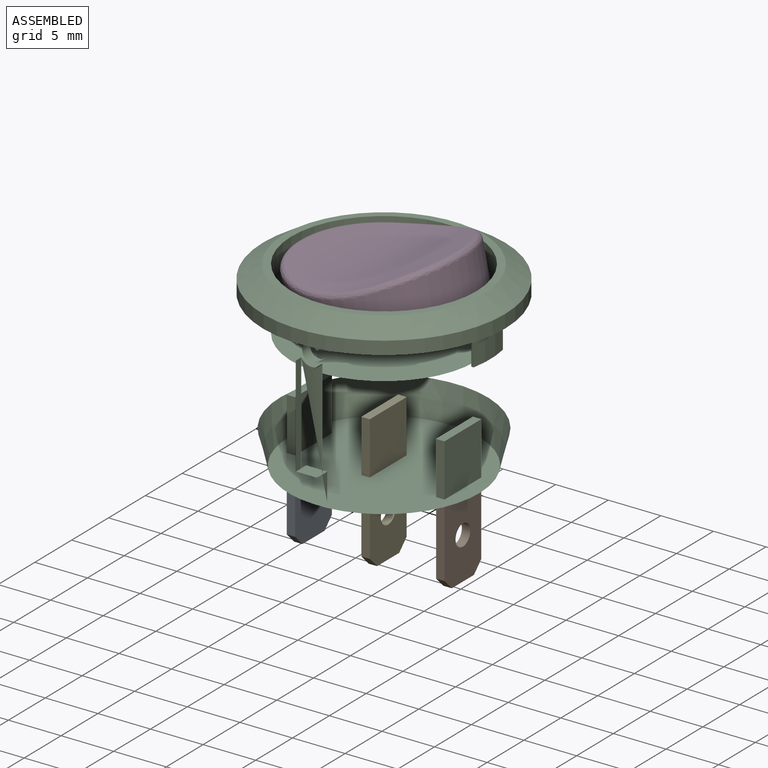
[diagram: assembled view]
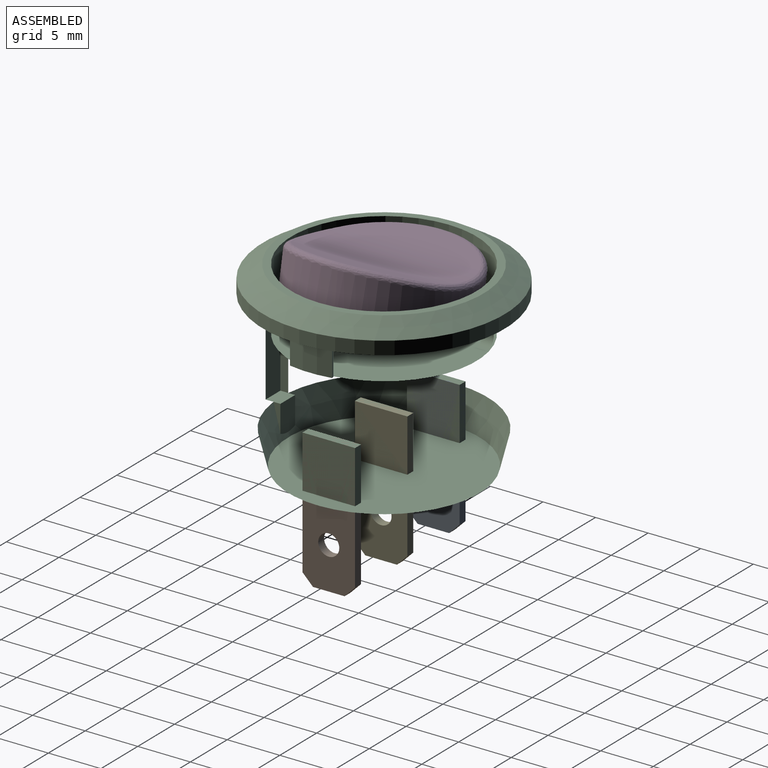
[diagram: assembled view, second angle]
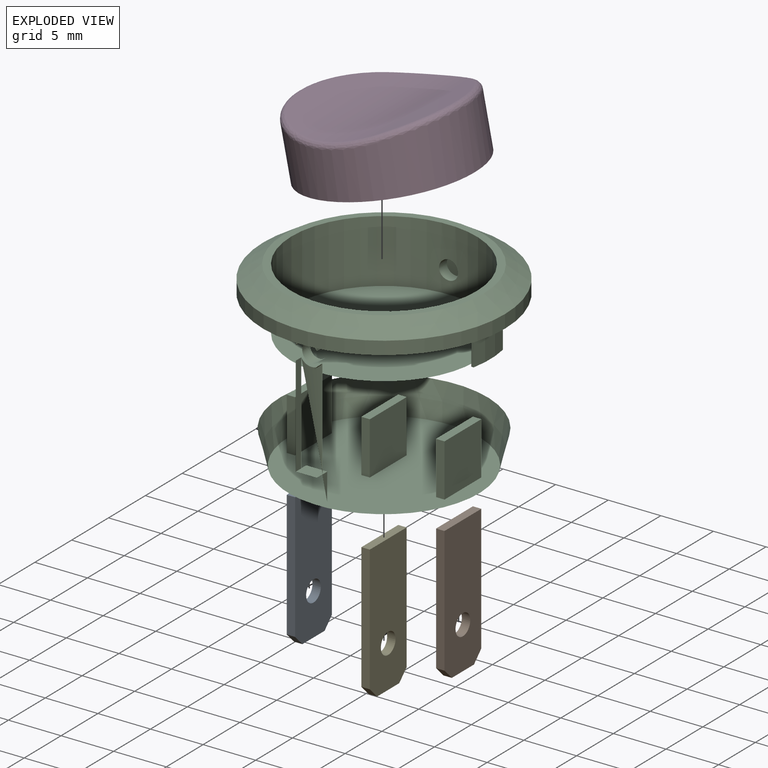
[diagram: exploded view]
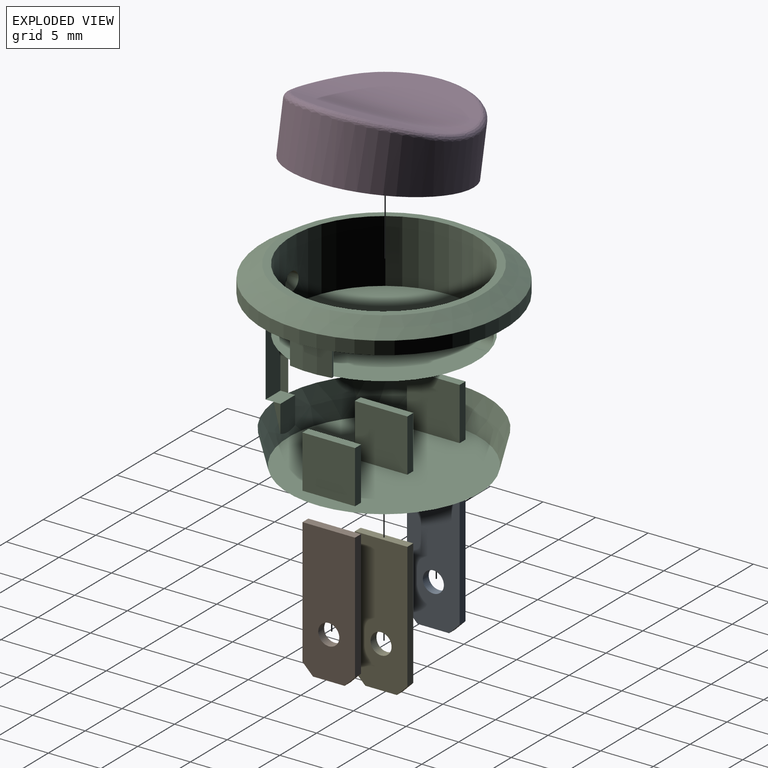
[diagram: exploded view, second angle]
ASSEMBLY  parts=5 mates=4
PART A: 9 faces, bbox 0.8x5x13 mm
  f0: plane 13x5mm, normal (-1,0,0), area 60.9mm2, adj f1,f3,f4,f5,f6,f7,f8
  f1: plane 12x0.8mm, normal (0,-1,0), area 9.6mm2, adj f0,f2,f4,f7
  f2: plane 13x5mm, normal (1,0,0), area 60.9mm2, adj f1,f3,f4,f5,f6,f7,f8
  f3: plane 12x0.8mm, normal (0,1,0), area 9.6mm2, adj f0,f2,f4,f8
  f4: plane 5x0.8mm, normal (0,0,1), area 4mm2, adj f0,f1,f2,f3
  f5: plane 3x0.8mm, normal (0,0,-1), area 2.4mm2, adj f0,f2,f7,f8
  f6: cylinder r=1mm len=2mm, axis (-1,0,0), area 5mm2, adj f0,f2
  f7: plane 1x1mm, normal (0,-0.71,-0.71), area 1.1mm2, adj f0,f1,f2,f5
  f8: plane 1x1mm, normal (0,0.71,-0.71), area 1.1mm2, adj f0,f2,f3,f5
PART B: same geometry as A
PART C: 50 faces, bbox 62.4x62.4x56.7 mm
  f0: plane 62.4x62.4mm, normal (0,0,-1), area 107.2mm2, adj f1,f3,f4,f5,f7,f8,f9,f11
  f1: plane 0.75x0.74mm, normal (1,0,0), area 0.6mm2, adj f0,f2,f3,f13
  f2: cylinder r=1.2mm len=2mm, axis (0,-1,0), area 1.7mm2, adj f1,f3,f4,f13
  f3: plane 2x0.74mm, normal (0,-1,0), area 0.7mm2, adj f0,f1,f2,f4
  f4: plane 0.75x0.74mm, normal (-1,0,0), area 0.6mm2, adj f0,f2,f3,f13
  f5: plane 3x0.25mm, normal (0.2,-0.98,0), area 0.8mm2, adj f0,f6,f7,f13
  f6: plane 4x0.45mm, normal (0,0,-1), area 1mm2, adj f5,f7,f8,f13
  f7: cylinder r=10.1mm len=4mm, axis (0,0,1), area 12.1mm2, adj f0,f5,f6,f8
  f8: plane 3x0.25mm, normal (0.2,0.98,0), area 0.8mm2, adj f0,f6,f7,f13
  f9: plane 42.4x39.65mm, normal (-0.2,0.98,0), area 0.8mm2, adj f0,f10,f11,f13
  f10: plane 4x0.45mm, normal (0,0,-1), area 1mm2, adj f9,f11,f12,f13
  f11: cylinder r=10.1mm len=4mm, axis (0,0,1), area 12.1mm2, adj f0,f9,f10,f12
  f12: plane 3x0.25mm, normal (-0.2,-0.98,0), area 0.8mm2, adj f0,f10,f11,f13
  f13: cylinder r=9.85mm len=19.7mm, axis (0,0,1), area 22.1mm2, adj f0,f1,f2,f4,f5,f6,f8,f9
  f14: cylinder r=11.5mm len=23mm, axis (0,0,-1), area 90.3mm2, adj f0,f15
  f15: cone r=9.5mm half-angle=58deg, axis (0,0,-1), area 155.6mm2, adj f14,f16
  f16: plane 19x19mm, normal (0,0,1), area 40.2mm2, adj f15,f17
  f17: cylinder r=8.8mm len=17.6mm, axis (0,0,1), area 326.6mm2, adj f16,f18,f20,f22
  f18: cylinder r=0.9mm len=1.8mm, axis (0,-1,0), area 6mm2, adj f17,f19
  f19: cylinder r=9.85mm len=1.8mm, axis (0,0,1), area 2.5mm2, adj f18
  f20: cylinder r=0.9mm len=1.8mm, axis (0,-1,0), area 6mm2, adj f17,f21
  f21: cylinder r=9.85mm len=1.8mm, axis (0,0,1), area 2.5mm2, adj f20
  f22: plane 17.6x17.6mm, normal (0,0,1), area 243.3mm2, adj f17
  f23: cylinder r=9.85mm len=19.64mm, axis (0,0,1), area 18.4mm2, adj f24,f25,f26,f27,f28
  f24: cone r=9.05mm half-angle=14deg, axis (0,0,1), area 0.1mm2, adj f23,f25,f29
  f25: cone r=9.05mm half-angle=14deg, axis (0,0,1), area 190.1mm2, adj f23,f24,f30,f31,f32
  f26: plane 9.54x0.75mm, normal (1,0,0), area 7.2mm2, adj f23,f27,f33,f34
  f27: cylinder r=1.2mm len=2mm, axis (0,-1,0), area 1.7mm2, adj f23,f26,f28,f33
  f28: plane 9.54x0.75mm, normal (-1,0,0), area 7.2mm2, adj f23,f27,f33,f34
  f29: plane 2.59x0.65mm, normal (-1,0,0), area 0.8mm2, adj f24,f32,f34
  f30: plane 2.59x0.65mm, normal (1,0,0), area 0.8mm2, adj f25,f32,f34
  f31: plane 18.1x18.1mm, normal (0,0,-1), area 245.3mm2, adj f25,f35,f36,f37,f38,f39,f40,f41
  f32: plane 2.81x2mm, normal (0,-1,0), area 5.5mm2, adj f25,f29,f30,f34
  f33: plane 9.54x2mm, normal (0,-1,0), area 18.3mm2, adj f26,f27,f28,f34
  f34: plane 2x1.4mm, normal (0,0,-1), area 2.8mm2, adj f26,f28,f29,f30,f32,f33
  f35: plane 5x5mm, normal (1,0,0), area 25mm2, adj f31,f36,f38,f47
  f36: plane 5x0.8mm, normal (0,1,0), area 4mm2, adj f31,f35,f37,f47
  f37: plane 5x5mm, normal (-1,0,0), area 25mm2, adj f31,f36,f38,f47
  f38: plane 5x0.8mm, normal (0,-1,0), area 4mm2, adj f31,f35,f37,f47
  f39: plane 5x5mm, normal (1,0,0), area 25mm2, adj f31,f40,f42,f48
  f40: plane 5x0.8mm, normal (0,1,0), area 4mm2, adj f31,f39,f41,f48
  f41: plane 5x5mm, normal (-1,0,0), area 25mm2, adj f31,f40,f42,f48
  f42: plane 5x0.8mm, normal (0,-1,0), area 4mm2, adj f31,f39,f41,f48
  f43: plane 5x5mm, normal (1,0,0), area 25mm2, adj f31,f44,f46,f49
  f44: plane 5x0.8mm, normal (0,1,0), area 4mm2, adj f31,f43,f45,f49
  f45: plane 5x5mm, normal (-1,0,0), area 25mm2, adj f31,f44,f46,f49
  f46: plane 5x0.8mm, normal (0,-1,0), area 4mm2, adj f31,f43,f45,f49
  f47: plane 5x0.8mm, normal (0,0,-1), area 4mm2, adj f35,f36,f37,f38
  f48: plane 5x0.8mm, normal (0,0,-1), area 4mm2, adj f39,f40,f41,f42
  f49: plane 5x0.8mm, normal (0,0,-1), area 4mm2, adj f43,f44,f45,f46
PART D: 9 faces, bbox 16x16x6 mm
  f0: cylinder r=8mm len=16mm, axis (0,0,-1), area 245.9mm2, adj f1,f5,f6,f7,f8
  f1: plane 16x16mm, normal (0,0,-1), area 201.1mm2, adj f0
  f2: plane 12.66x3.48mm, normal (0.2,0,0.98), area 31.7mm2, adj f4,f5
  f3: plane 12.66x3.48mm, normal (-0.2,0,0.98), area 31.7mm2, adj f4,f8
  f4: cylinder r=20mm len=15mm, axis (0,1,0), area 112.5mm2, adj f2,f3,f6,f7
  f5: bspline ~14.3x4.63mm, area 13.8mm2, adj f0,f2,f6,f7
  f6: bspline ~11.42x2.74mm, area 7.1mm2, adj f0,f4,f5,f8
  f7: bspline ~11.42x2.74mm, area 7.1mm2, adj f0,f4,f5,f8
  f8: bspline ~14.3x4.63mm, area 13.8mm2, adj f0,f3,f6,f7
PART E: same geometry as A
PLACE A t=(8.92,-2.1,-13.97)mm
PLACE B t=(23.12,-2.1,-13.97)mm
PLACE C t=(16.42,0.4,8.83)mm
PLACE D rot(axis=(0,-1,0),11.3deg) t=(17.18,0.4,7.01)mm
PLACE E t=(16.02,-2.1,-13.97)mm
MATE fastened C.f47 <-> A.f4  axis (0,0,-1) through (9.32,0.4,-0.97)mm
MATE fastened E.f4 <-> C.f14  axis (0,0,1) through (16.42,0.4,-0.97)mm
MATE fastened B.f4 <-> C.f49  axis (0,0,1) through (23.52,0.4,-0.97)mm
MATE fastened D.f2 <-> C.f7  axis (0,0,1) through (16.42,0.4,11.33)mm
